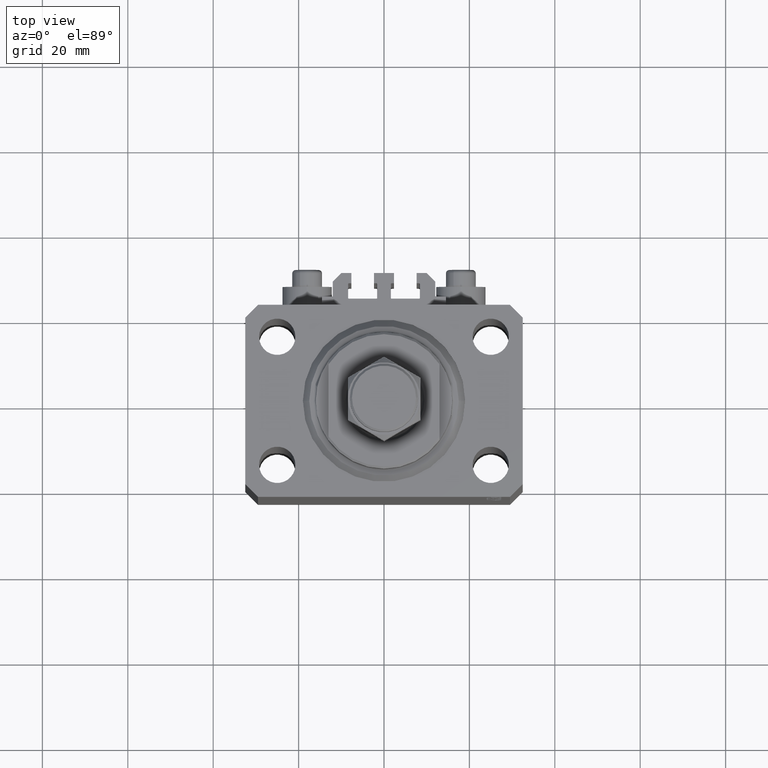
[diagram: clean part render]
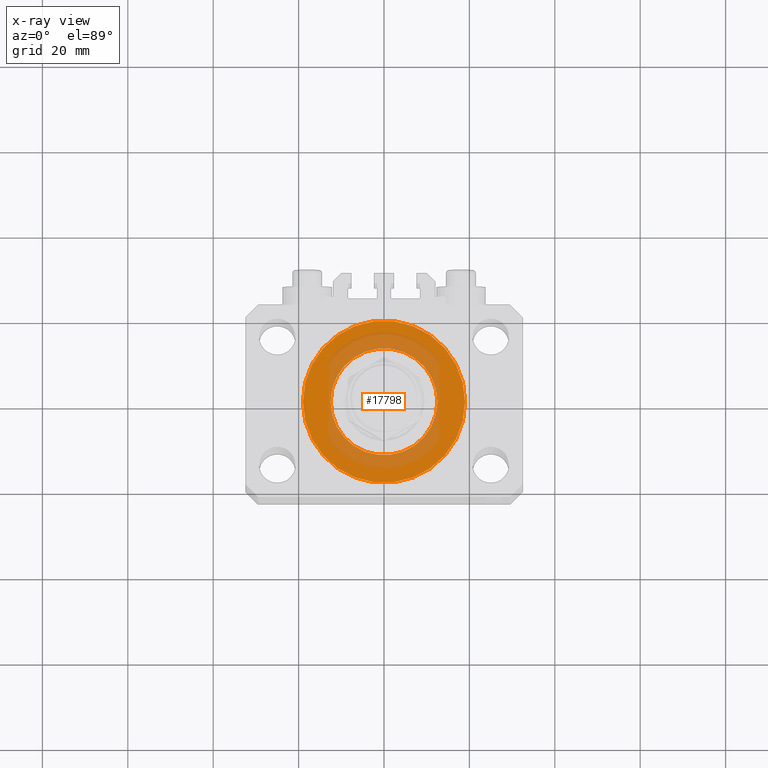
[diagram: x-ray — body ghosted, one internal face saturated and labeled with its STEP entity id]
A machine part, top view, then the same camera in x-ray: the body is ghosted and one INTERNAL B-rep face — a face not visible from any outside direction — is saturated and labeled: STEP entity #17798.
In plain terms, the highlighted planar face has unit normal (0, 0, 1).
Its self-contained STEP definition (entity closure, byte-faithful):
#42 = EDGE_CURVE ( 'NONE', #29015, #20426, #36645, .T. ) ;
#208 = CARTESIAN_POINT ( 'NONE',  ( 19.00000000000000000, 0.000000000000000000, -14.00000000000000000 ) ) ;
#728 = DIRECTION ( 'NONE',  ( 1.000000000000000000, 0.000000000000000000, -0.000000000000000000 ) ) ;
#1450 = DIRECTION ( 'NONE',  ( 0.000000000000000000, 0.000000000000000000, 1.000000000000000000 ) ) ;
#4876 = EDGE_CURVE ( 'NONE', #38454, #18396, #30636, .T. ) ;
#4984 = CARTESIAN_POINT ( 'NONE',  ( -19.00000000000000000, 2.326828918379970970E-15, -14.00000000000000000 ) ) ;
#5162 = CARTESIAN_POINT ( 'NONE',  ( 0.000000000000000000, 0.000000000000000000, -14.00000000000000000 ) ) ;
#7053 = CARTESIAN_POINT ( 'NONE',  ( 0.000000000000000000, 0.000000000000000000, -13.99999999999999822 ) ) ;
#7655 = EDGE_CURVE ( 'NONE', #18396, #38454, #44161, .T. ) ;
#8894 = FACE_BOUND ( 'NONE', #31428, .T. ) ;
#8983 = ORIENTED_EDGE ( 'NONE', *, *, #42, .T. ) ;
#8985 = AXIS2_PLACEMENT_3D ( 'NONE', #11923, #37003, #27028 ) ;
#9964 = CARTESIAN_POINT ( 'NONE',  ( 0.000000000000000000, 0.000000000000000000, -13.99999999999999822 ) ) ;
#11327 = AXIS2_PLACEMENT_3D ( 'NONE', #23285, #1450, #728 ) ;
#11881 = ORIENTED_EDGE ( 'NONE', *, *, #4876, .F. ) ;
#11923 = CARTESIAN_POINT ( 'NONE',  ( 0.000000000000000000, 0.000000000000000000, -14.00000000000000000 ) ) ;
#11975 = ORIENTED_EDGE ( 'NONE', *, *, #13797, .T. ) ;
#13340 = DIRECTION ( 'NONE',  ( 1.000000000000000000, 0.000000000000000000, 0.000000000000000000 ) ) ;
#13797 = EDGE_CURVE ( 'NONE', #20426, #29015, #22260, .T. ) ;
#17400 = DIRECTION ( 'NONE',  ( 1.000000000000000000, 0.000000000000000000, 0.000000000000000000 ) ) ;
#17798 = ADVANCED_FACE ( 'NONE', ( #8894, #27236 ), #46513, .T. ) ;
#18396 = VERTEX_POINT ( 'NONE', #33324 ) ;
#20426 = VERTEX_POINT ( 'NONE', #4984 ) ;
#22260 = CIRCLE ( 'NONE', #36435, 19.00000000000000000 ) ;
#23285 = CARTESIAN_POINT ( 'NONE',  ( 0.000000000000000000, 0.000000000000000000, -14.00000000000000000 ) ) ;
#25064 = DIRECTION ( 'NONE',  ( 0.000000000000000000, 0.000000000000000000, 1.000000000000000000 ) ) ;
#26788 = AXIS2_PLACEMENT_3D ( 'NONE', #9964, #25064, #17400 ) ;
#27028 = DIRECTION ( 'NONE',  ( 1.000000000000000000, 0.000000000000000000, 0.000000000000000000 ) ) ;
#27236 = FACE_OUTER_BOUND ( 'NONE', #41404, .T. ) ;
#29015 = VERTEX_POINT ( 'NONE', #208 ) ;
#30636 = CIRCLE ( 'NONE', #36951, 12.50000000000000000 ) ;
#31428 = EDGE_LOOP ( 'NONE', ( #31631, #11881 ) ) ;
#31631 = ORIENTED_EDGE ( 'NONE', *, *, #7655, .F. ) ;
#33324 = CARTESIAN_POINT ( 'NONE',  ( 12.50000000000000000, 0.000000000000000000, -13.99999999999999822 ) ) ;
#33532 = DIRECTION ( 'NONE',  ( 0.000000000000000000, 0.000000000000000000, 1.000000000000000000 ) ) ;
#36249 = DIRECTION ( 'NONE',  ( 1.000000000000000000, 0.000000000000000000, 0.000000000000000000 ) ) ;
#36435 = AXIS2_PLACEMENT_3D ( 'NONE', #5162, #47246, #13340 ) ;
#36645 = CIRCLE ( 'NONE', #8985, 19.00000000000000000 ) ;
#36951 = AXIS2_PLACEMENT_3D ( 'NONE', #7053, #33532, #36249 ) ;
#37003 = DIRECTION ( 'NONE',  ( 0.000000000000000000, 0.000000000000000000, 1.000000000000000000 ) ) ;
#37543 = CARTESIAN_POINT ( 'NONE',  ( -12.50000000000000000, 1.530808498934191521E-15, -13.99999999999999822 ) ) ;
#38454 = VERTEX_POINT ( 'NONE', #37543 ) ;
#41404 = EDGE_LOOP ( 'NONE', ( #8983, #11975 ) ) ;
#44161 = CIRCLE ( 'NONE', #26788, 12.50000000000000000 ) ;
#46513 = PLANE ( 'NONE',  #11327 ) ;
#47246 = DIRECTION ( 'NONE',  ( 0.000000000000000000, 0.000000000000000000, 1.000000000000000000 ) ) ;